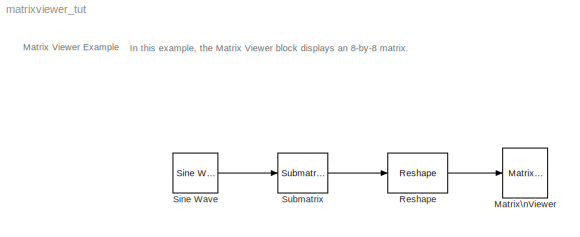
MODEL matrixviewer_tut
KIND model
CONFIG AbsTol = auto
CONFIG FixedStep = auto
CONFIG MaxStep = auto
CONFIG MinStep = auto
CONFIG PostLoadFcn = set_param(gcs,'SimulationCommand','Update')
CONFIG RelTol = 1e-3
CONFIG Solver = FixedStepDiscrete
CONFIG SolverMode = Auto
CONFIG StartTime = 0.0
CONFIG StopTime = inf
BLOCK [Reference] Matrix\nViewer  REF=dspsnks3/Matrix\nViewer
  AxisColorbar = on
  AxisOrigin = Upper left corner
  AxisParams = off
  AxisZoom = off
  CMapStr = bone(256)
  FigPos = get(0,'defaultfigureposition')
  ImageParams = on
  Ports = [1]
  SourceBlock = dspsnks3/Matrix\nViewer
  SourceType = Matrix Viewer
  XLabel = X-axis
  YLabel = Y-axis
  YMax = 1.0
  YMin = -1.0
  ZLabel = Z-axis
BLOCK [Reference] Reshape  REF=simulink3/Signals\n& Systems/Reshape
  OutputDimensionality = Customize
  OutputDimensions = [8,8]
  Ports = [1, 1]
  SourceBlock = simulink3/Signals\n& Systems/Reshape
  SourceType = Reshape
BLOCK [Reference] Sine Wave  REF=dspsrcs3/Sine Wave
  Amplitude = 1
  CompMethod = Trigonometric Fcn
  Frequency = 100
  OutComplex = Real
  Phase = 0:pi/64:pi
  Ports = [0, 1]
  ResetState = Restart at time zero
  SampleMode = Discrete
  SampleTime = 1/1000
  SamplesPerFrame = 1
  SourceBlock = dspsrcs3/Sine Wave
  SourceType = Sine Wave
BLOCK [Reference] Submatrix  REF=dspmtrx3/Submatrix
  ColEndIndex = 1
  ColEndMode = Offset from last
  ColSpan = Range of columns
  ColStartIndex = 1
  ColStartMode = First
  Ports = [1, 1]
  RowEndIndex = 1
  RowEndMode = Last
  RowSpan = All rows
  RowStartIndex = 1
  RowStartMode = First
  SourceBlock = dspmtrx3/Submatrix
  SourceType = Submatrix
LINE Reshape:1 -> Matrix\nViewer:1
LINE Sine Wave:1 -> Submatrix:1
LINE Submatrix:1 -> Reshape:1
